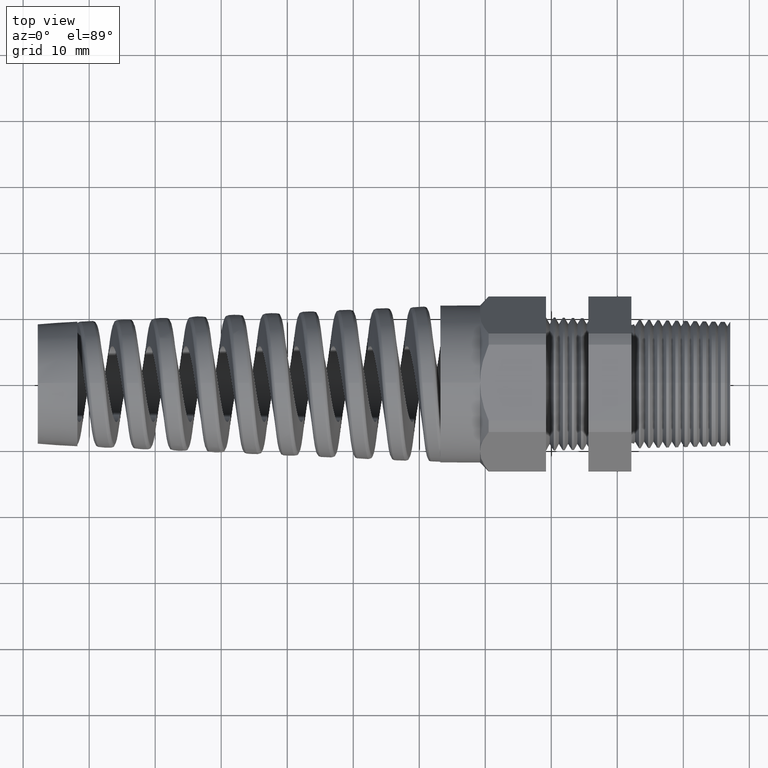
[diagram: clean part render]
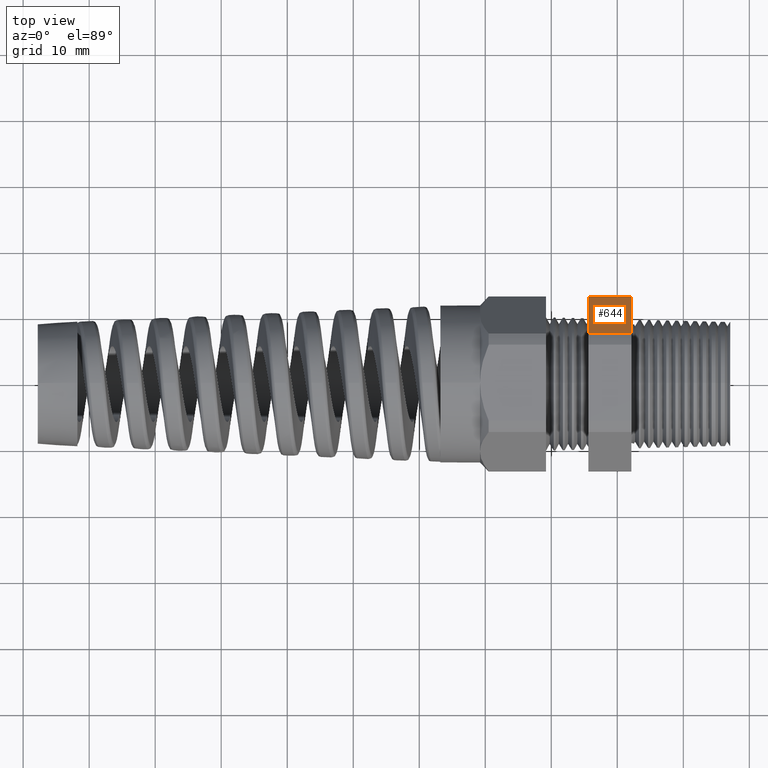
[diagram: same view with one face highlighted and labeled with its STEP entity id]
A machine part, top view. The second image highlights one B-rep face of the part: STEP entity #644.
In plain terms, the highlighted planar face has unit normal (0, 0.866, 0.5).
Its self-contained STEP definition (entity closure, byte-faithful):
#55 = VERTEX_POINT ( 'NONE', #1353 ) ;
#77 = EDGE_CURVE ( 'NONE', #55, #78, #1321, .T. ) ;
#78 = VERTEX_POINT ( 'NONE', #1317 ) ;
#616 = ORIENTED_EDGE ( 'NONE', *, *, #642, .T. ) ;
#617 = ORIENTED_EDGE ( 'NONE', *, *, #800, .F. ) ;
#618 = ORIENTED_EDGE ( 'NONE', *, *, #619, .F. ) ;
#619 = EDGE_CURVE ( 'NONE', #78, #753, #2167, .T. ) ;
#620 = ORIENTED_EDGE ( 'NONE', *, *, #77, .F. ) ;
#642 = EDGE_CURVE ( 'NONE', #55, #754, #2510, .T. ) ;
#644 = ADVANCED_FACE ( 'NONE', ( #2379 ), #2378, .T. ) ;
#645 = EDGE_LOOP ( 'NONE', ( #616, #617, #618, #620 ) ) ;
#753 = VERTEX_POINT ( 'NONE', #2362 ) ;
#754 = VERTEX_POINT ( 'NONE', #2361 ) ;
#800 = EDGE_CURVE ( 'NONE', #753, #754, #2687, .T. ) ;
#1317 = CARTESIAN_POINT ( 'NONE',  ( -0.3100000000000000000, 0.2938165587564949300, 0.4310947921287048300 ) ) ;
#1318 = DIRECTION ( 'NONE',  ( 0.0000000000000000000, -0.4999999999999998300, 0.8660254037844386000 ) ) ;
#1319 = VECTOR ( 'NONE', #1318, 39.37007874015748900 ) ;
#1320 = CARTESIAN_POINT ( 'NONE',  ( -0.3100000000000000000, 0.6420319397786862200, -0.1720319397786860800 ) ) ;
#1321 = LINE ( 'NONE', #1320, #1319 ) ;
#1353 = CARTESIAN_POINT ( 'NONE',  ( -0.3100000000000000000, 0.5202473208008776600, 0.03890520787129531800 ) ) ;
#2164 = DIRECTION ( 'NONE',  ( -1.000000000000000000, 0.0000000000000000000, 0.0000000000000000000 ) ) ;
#2165 = VECTOR ( 'NONE', #2164, 39.37007874015748100 ) ;
#2166 = CARTESIAN_POINT ( 'NONE',  ( 0.2800000000000001400, 0.2938165587564949300, 0.4310947921287048300 ) ) ;
#2167 = LINE ( 'NONE', #2166, #2165 ) ;
#2361 = CARTESIAN_POINT ( 'NONE',  ( -0.5659055118110235500, 0.5202473208008776600, 0.03890520787129531800 ) ) ;
#2362 = CARTESIAN_POINT ( 'NONE',  ( -0.5659055118110235500, 0.2938165587564949300, 0.4310947921287048300 ) ) ;
#2378 = PLANE ( 'NONE',  #2580 ) ;
#2379 = FACE_OUTER_BOUND ( 'NONE', #645, .T. ) ;
#2380 = DIRECTION ( 'NONE',  ( -1.000000000000000000, 0.0000000000000000000, 0.0000000000000000000 ) ) ;
#2381 = VECTOR ( 'NONE', #2380, 39.37007874015748100 ) ;
#2382 = CARTESIAN_POINT ( 'NONE',  ( 0.2800000000000001400, 0.5202473208008776600, 0.03890520787129531800 ) ) ;
#2510 = LINE ( 'NONE', #2382, #2381 ) ;
#2577 = DIRECTION ( 'NONE',  ( 0.0000000000000000000, -0.4999999999999998300, 0.8660254037844386000 ) ) ;
#2578 = DIRECTION ( 'NONE',  ( 0.0000000000000000000, 0.8660254037844387100, 0.4999999999999998900 ) ) ;
#2579 = CARTESIAN_POINT ( 'NONE',  ( 0.2800000000000001400, 0.2938165587564949300, 0.4310947921287048800 ) ) ;
#2580 = AXIS2_PLACEMENT_3D ( 'NONE', #2579, #2578, #2577 ) ;
#2687 = LINE ( 'NONE', #2811, #2749 ) ;
#2748 = DIRECTION ( 'NONE',  ( 0.0000000000000000000, 0.4999999999999998300, -0.8660254037844386000 ) ) ;
#2749 = VECTOR ( 'NONE', #2748, 39.37007874015748900 ) ;
#2811 = CARTESIAN_POINT ( 'NONE',  ( -0.5659055118110235500, 0.6420319397786862200, -0.1720319397786860800 ) ) ;